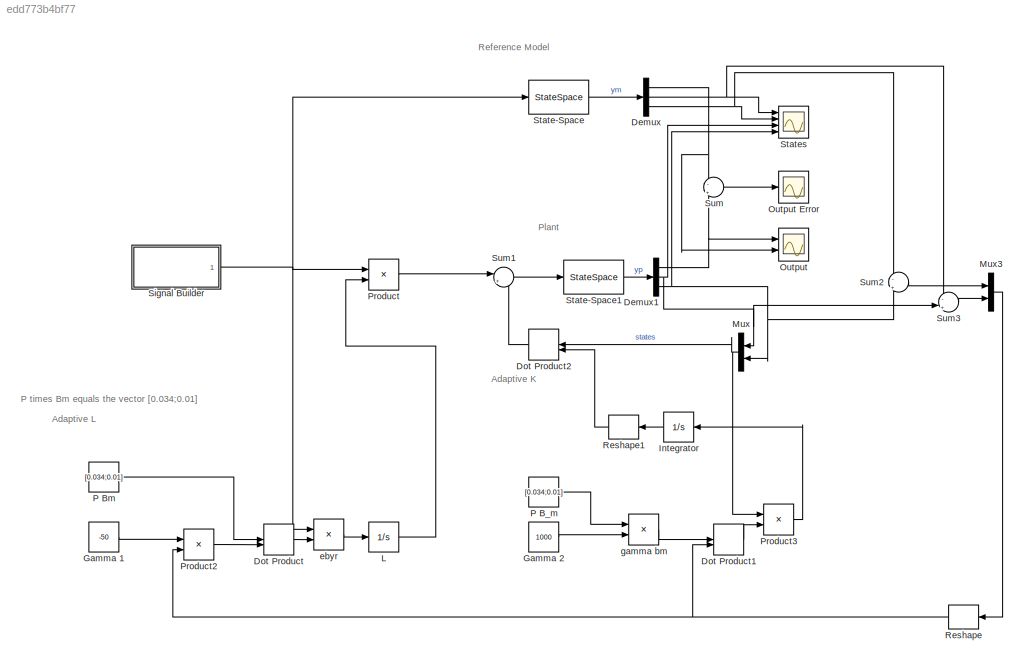
MODEL slx_edd773b4bf77
KIND model
CONFIG AbsTol = auto
CONFIG EnableMultiTasking = off
CONFIG FixedStep = auto
CONFIG MaxStep = auto
CONFIG MinStep = auto
CONFIG RelTol = 1e-3
CONFIG SampleTimeConstraint = Unconstrained
CONFIG Solver = ode23tb
CONFIG SolverName = ode23tb
CONFIG StartTime = 0.0
CONFIG StopTime = 50
BLOCK [Demux] Demux
  DisplayOption = bar
  Outputs = 3
  Ports = [1, 3]
BLOCK [Demux] Demux1
  DisplayOption = bar
  Outputs = 3
  Ports = [1, 3]
BLOCK [DotProduct] Dot Product
  OutDataTypeStr = Inherit: Inherit via internal rule
BLOCK [DotProduct] Dot Product1
  OutDataTypeStr = Inherit: Inherit via internal rule
BLOCK [DotProduct] Dot Product2
  OutDataTypeStr = Inherit: Inherit via internal rule
BLOCK [Constant] Gamma 1
  Value = -50
BLOCK [Constant] Gamma 2
  Value = 1000
BLOCK [Integrator] Integrator
  Ports = [1, 1]
BLOCK [Integrator] L
  Ports = [1, 1]
BLOCK [Mux] Mux
  DisplayOption = bar
  Inputs = 2
  Ports = [2, 1]
BLOCK [Mux] Mux3
  DisplayOption = bar
  Inputs = 2
  Ports = [2, 1]
BLOCK [Scope] Output
  NumInputPorts = 2
  Ports = [2]
  ScopeSpecificationString = Simulink.scopes.TimeScopeBlockCfg('CurrentConfiguration', extmgr.ConfigurationSet(extmgr.Configuration('Core','General UI',true),extmgr.Configuration('Core','Source UI',true),extmgr.Configuration('Sources','WiredSimulink',true,'DataLoggingVariableName','ScopeData1'),extmgr.Configuration('Visuals','Time Domain',true,'SerializedDisplays',{struct('MinYLimReal','-2.20167','MaxYLimReal','3.02241','YLab...<+1377ch>
BLOCK [Scope] Output Error
  NumInputPorts = 1
  Ports = [1]
  ScopeSpecificationString = Simulink.scopes.TimeScopeBlockCfg('CurrentConfiguration', extmgr.ConfigurationSet(extmgr.Configuration('Core','General UI',true),extmgr.Configuration('Core','Source UI',true),extmgr.Configuration('Sources','WiredSimulink',true),extmgr.Configuration('Visuals','Time Domain',true,'SerializedDisplays',{struct('MinYLimReal','-3.15298','MaxYLimReal','3.12811','YLabelReal','','MinYLimMag','0.00000','MaxY...<+1323ch>
BLOCK [Constant] P B_m
  Value = [0.034;0.01]
BLOCK [Constant] P Bm
  Value = [0.034;0.01]
  VectorParams1D = off
BLOCK [Product] Product
  InputSameDT = off
  OutDataTypeStr = Inherit: Inherit via internal rule
  Ports = [2, 1]
  RndMeth = Floor
  SaturateOnIntegerOverflow = off
BLOCK [Product] Product2
  InputSameDT = off
  OutDataTypeStr = Inherit: Inherit via internal rule
  Ports = [2, 1]
  RndMeth = Floor
  SaturateOnIntegerOverflow = off
BLOCK [Product] Product3
  InputSameDT = off
  OutDataTypeStr = Inherit: Inherit via internal rule
  Ports = [2, 1]
  RndMeth = Floor
  SaturateOnIntegerOverflow = off
BLOCK [Reshape] Reshape
  OutputDimensionality = Row vector (2-D)
  OutputDimensions = 2
  Ports = [1, 1]
BLOCK [Reshape] Reshape1
  OutputDimensionality = Row vector (2-D)
  Ports = [1, 1]
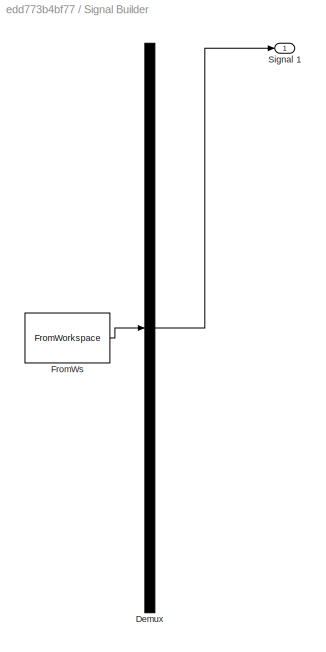
BLOCK [SubSystem] Signal Builder
  ClipboardFcn = sigbuilder_block('clipboard');
  CloseFcn = sigbuilder_block('close');
  ContinueFcn = sigbuilder_block('continue');
  CopyFcn = sigbuilder_block('copy');
  DeleteFcn = sigbuilder_block('delete');
  LoadFcn = sigbuilder_block('load',[437.6 199.2 550.4 400 ]);
  MaskHideContents = on
  ModelCloseFcn = sigbuilder_block('modelClose');
  NameChangeFcn = sigbuilder_block('namechange');
  OpenFcn = sigbuilder_block('open',[437.6 199.2 550.4 400 ]);
  PauseFcn = sigbuilder_block('pause');
  Ports = [0, 1]
  PreSaveFcn = sigbuilder_block('preSave');
  RequestExecContextInheritance = off
  StartFcn = sigbuilder_block('start');
  StopFcn = sigbuilder_block('stop');
  Tag = STV Subsys
  Variant = off
BLOCK [Demux] Signal Builder/Demux
  Outputs = 1
  Ports = [1, 1]
  Tag = STV Demux
BLOCK [FromWorkspace] Signal Builder/FromWs
  SampleTime = 0
  Tag = STV FromWs
  VariableName = tuvar
  ZeroCross = on
BLOCK [Outport] Signal Builder/Signal 1
  IconDisplay = Port number
  Tag = STV Outport
BLOCK [StateSpace] State-Space
  A = [-15 -50;1 0]
  B = [1;0]
  C = [1 50;1 0;0 1]
  D = [0;0;0]
  Ports = [1, 1]
  X0 = 0
BLOCK [StateSpace] State-Space1
  A = [-0.75 -2.5;1 0]
  B = [1;0]
  C = [1 1.5;1 0;0 1]
  D = [0;0;0]
  Ports = [1, 1]
  X0 = [0.1;-0.1]
BLOCK [Scope] States
  NumInputPorts = 4
  Ports = [4]
  ScopeSpecificationString = Simulink.scopes.TimeScopeBlockCfg('CurrentConfiguration', extmgr.ConfigurationSet(extmgr.Configuration('Core','General UI',true),extmgr.Configuration('Core','Source UI',true),extmgr.Configuration('Sources','WiredSimulink',true,'DataLoggingVariableName','ScopeData2'),extmgr.Configuration('Visuals','Time Domain',true,'SerializedDisplays',{struct('MinYLimReal','-0.98445','MaxYLimReal','1.08442','YLab...<+1469ch>
BLOCK [Sum] Sum
  IconShape = round
  InputSameDT = off
  Inputs = -|+
  OutDataTypeStr = Inherit: Inherit via internal rule
  Ports = [2, 1]
  SaturateOnIntegerOverflow = off
BLOCK [Sum] Sum1
  IconShape = round
  InputSameDT = off
  Inputs = |+-
  OutDataTypeStr = Inherit: Inherit via internal rule
  Ports = [2, 1]
  SaturateOnIntegerOverflow = off
BLOCK [Sum] Sum2
  IconShape = round
  InputSameDT = off
  Inputs = -|+
  OutDataTypeStr = Inherit: Inherit via internal rule
  Ports = [2, 1]
  SaturateOnIntegerOverflow = off
BLOCK [Sum] Sum3
  IconShape = round
  InputSameDT = off
  Inputs = -|+
  OutDataTypeStr = Inherit: Inherit via internal rule
  Ports = [2, 1]
  SaturateOnIntegerOverflow = off
BLOCK [Product] ebyr
  InputSameDT = off
  OutDataTypeStr = Inherit: Inherit via internal rule
  Ports = [2, 1]
  RndMeth = Floor
  SaturateOnIntegerOverflow = off
BLOCK [Product] gamma bm
  InputSameDT = off
  OutDataTypeStr = Inherit: Inherit via internal rule
  Ports = [2, 1]
  RndMeth = Floor
  SaturateOnIntegerOverflow = off
ANNOTATION (root): Adaptive K
ANNOTATION (root): Adaptive L
ANNOTATION (root): P times Bm equals the vector [0.034;0.01]
ANNOTATION (root): Plant
ANNOTATION (root): Reference Model
NET Demux1:1 -> Output:1, Sum:2
NET Demux1:2 -> Mux:1, States:3, Sum3:2
NET Demux1:3 -> Mux:2, States:4, Sum2:2
NET Demux:1 -> Output:2, Sum:1
NET Demux:2 -> States:1, Sum3:1
NET Demux:3 -> States:2, Sum2:1
LINE Dot Product1:1 -> Product3:2
LINE Dot Product2:1 -> Sum1:2
LINE Dot Product:1 -> ebyr:2
LINE Gamma 1:1 -> Product2:1
LINE Gamma 2:1 -> gamma bm:2
LINE Integrator:1 -> Reshape1:1
LINE L:1 -> Product:2
LINE Mux3:1 -> Reshape:1
NET Mux:1 -> Dot Product2:1, Product3:1
LINE P B_m:1 -> gamma bm:1
LINE P Bm:1 -> Dot Product:1
LINE Product2:1 -> Dot Product:2
LINE Product3:1 -> Integrator:1
LINE Product:1 -> Sum1:1
LINE Reshape1:1 -> Dot Product2:2
NET Reshape:1 -> Dot Product1:2, Product2:2
NET Signal Builder:1 -> Product:1, State-Space:1, ebyr:1
LINE State-Space1:1 -> Demux1:1
LINE State-Space:1 -> Demux:1
LINE Sum1:1 -> State-Space1:1
LINE Sum2:1 -> Mux3:1
LINE Sum3:1 -> Mux3:2
LINE Sum:1 -> Output Error:1
LINE ebyr:1 -> L:1
LINE gamma bm:1 -> Dot Product1:1
note: NET lines group one-source signal fan-out (src -> all destinations, sorted); 1:1 wires keep LINE
